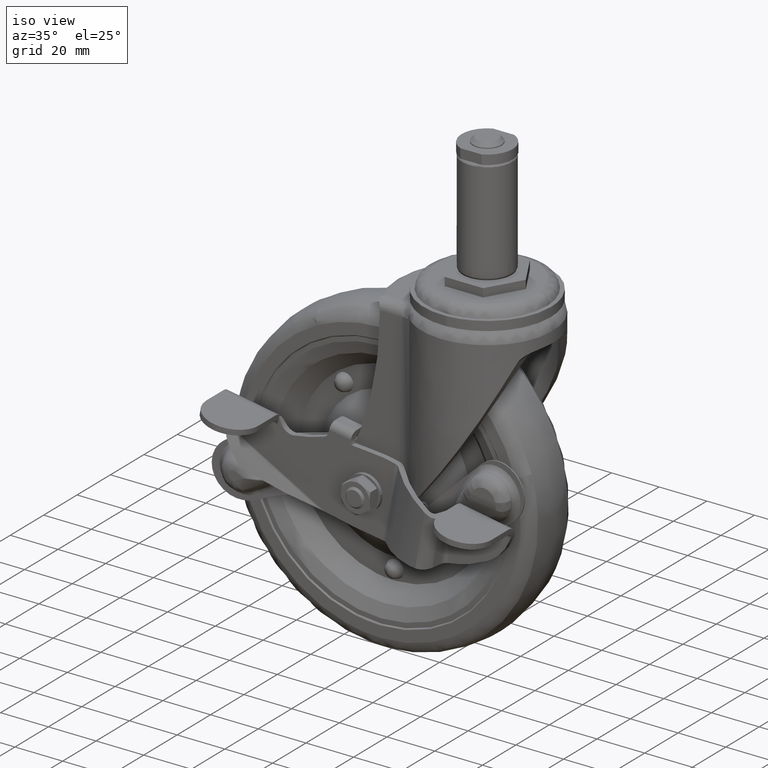
[diagram: clean part render]
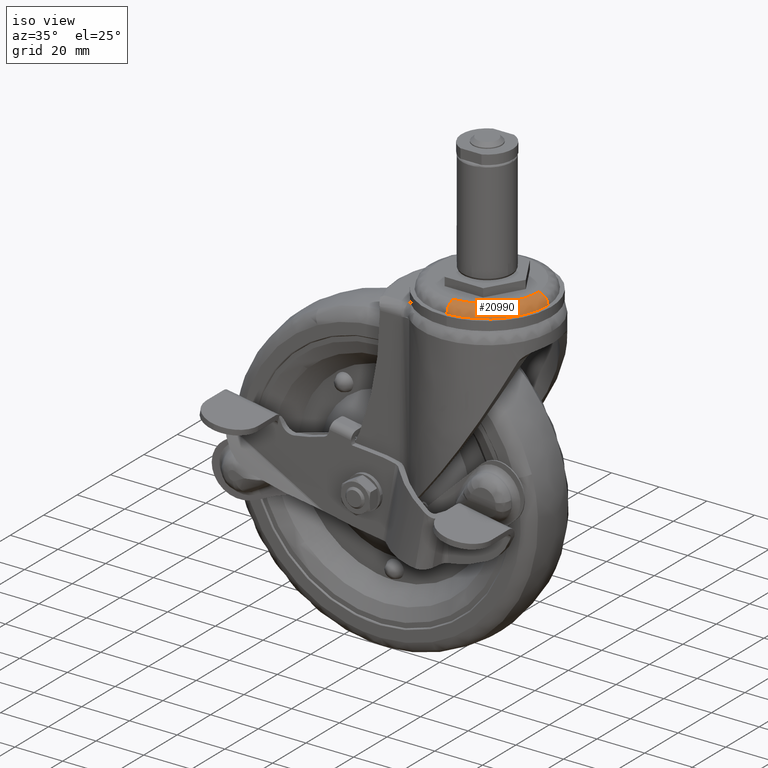
[diagram: same view with one face highlighted and labeled with its STEP entity id]
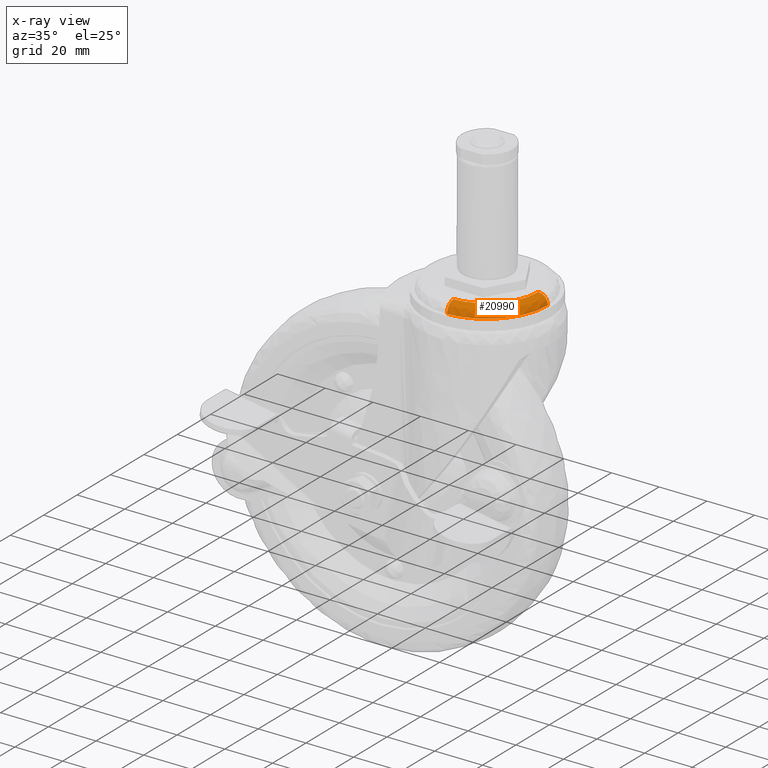
[diagram: x-ray of the same camera — body ghosted, the highlighted face saturated]
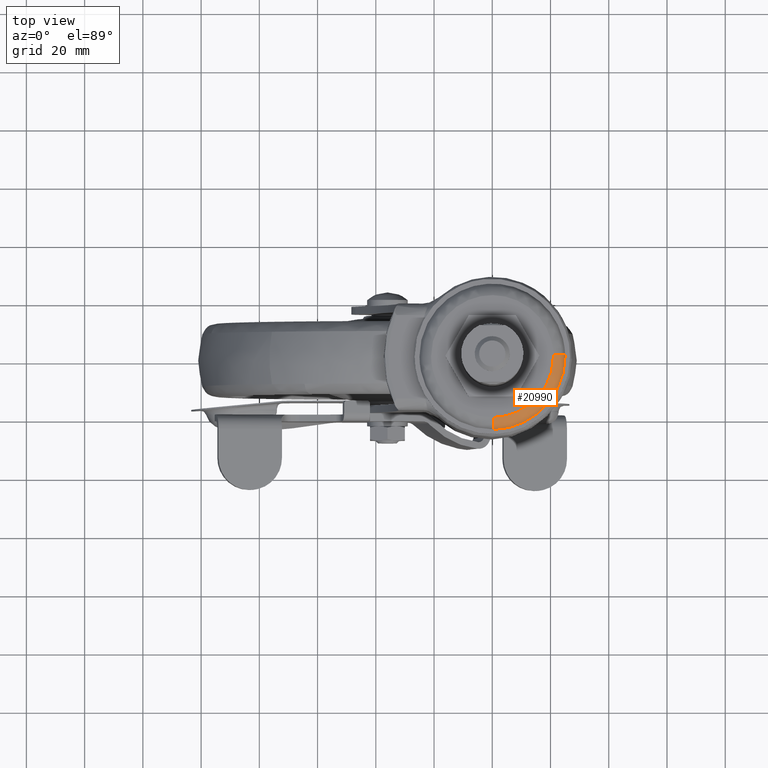
[diagram: same view with one face highlighted and labeled with its STEP entity id]
A machine part, iso view. The second image highlights one B-rep face of the part: STEP entity #20990.
The next image is the same camera in x-ray: the body ghosted, the highlighted face saturated — about 0% of this face is hidden behind the body in this view.
A second angle (top view) of the same face is appended — the face is thin or edge-on in the first view.
In plain terms, the highlighted face is a freeform B-spline surface patch.
Its self-contained STEP definition (entity closure, byte-faithful):
#20812=CARTESIAN_POINT('',(0.527732005274940,-20.993367982204379,-2.499783000000094));
#20813=VERTEX_POINT('',#20812);
#20831=CARTESIAN_POINT('',(20.993367982619450,0.527732005338805,-2.499783000000094));
#20832=VERTEX_POINT('',#20831);
#20848=CARTESIAN_POINT('',(24.992104732076921,0.628252386300305,-6.499782302629562));
#20849=VERTEX_POINT('',#20848);
#20850=CARTESIAN_POINT('',(20.993367982619457,0.527732005338805,-2.499783000000095));
#20851=CARTESIAN_POINT('',(24.992103337782151,0.628252351033474,-2.499783015387259));
#20852=CARTESIAN_POINT('',(24.992104732076918,0.628252386300305,-6.499782302629562));
#20860=(BOUNDED_CURVE()B_SPLINE_CURVE(2,(#20850,#20851,#20852),.UNSPECIFIED.,.F.,.U.)B_SPLINE_CURVE_WITH_KNOTS((3,3),(-1.723441278024150,-0.263587239804163),.UNSPECIFIED.)CURVE()GEOMETRIC_REPRESENTATION_ITEM()RATIONAL_B_SPLINE_CURVE((0.883897565742766,0.626638791542446,0.888510279593106))REPRESENTATION_ITEM(''));
#20861=EDGE_CURVE('',#20832,#20849,#20860,.T.);
#20880=CARTESIAN_POINT('',(0.628252386297336,-24.992104732076999,-6.499782302629559));
#20881=VERTEX_POINT('',#20880);
#20897=CARTESIAN_POINT('',(0.527732005274940,-20.993367982204379,-2.499783000000095));
#20898=CARTESIAN_POINT('',(0.628252351033476,-24.992103337782151,-2.499783014554168));
#20899=CARTESIAN_POINT('',(0.628252386297336,-24.992104732076992,-6.499782302629559));
#20907=(BOUNDED_CURVE()B_SPLINE_CURVE(2,(#20897,#20898,#20899),.UNSPECIFIED.,.F.,.U.)B_SPLINE_CURVE_WITH_KNOTS((3,3),(-1.723441278238585,-0.263587239804163),.UNSPECIFIED.)CURVE()GEOMETRIC_REPRESENTATION_ITEM()RATIONAL_B_SPLINE_CURVE((0.883897565818343,0.626638791503980,0.888510279593106))REPRESENTATION_ITEM(''));
#20908=EDGE_CURVE('',#20813,#20881,#20907,.T.);
#20913=CARTESIAN_POINT('',(20.714558374233214,0.520723279003016,-2.509517835337709));
#20914=CARTESIAN_POINT('',(21.235281653236225,-20.193835095230192,-2.509517835337709));
#20915=CARTESIAN_POINT('',(0.520723279003018,-20.714558374233214,-2.509517835337709));
#20916=CARTESIAN_POINT('',(25.301349891967678,0.636026201520973,-2.188824952701496));
#20917=CARTESIAN_POINT('',(25.937376093488652,-24.665323690446677,-2.188824952701495));
#20918=CARTESIAN_POINT('',(0.636026201520975,-25.301349891967678,-2.188824952701496));
#20919=CARTESIAN_POINT('',(24.982477172632954,0.628010368163738,-6.777185340830907));
#20920=CARTESIAN_POINT('',(25.610487540796694,-24.354466804469212,-6.777185340830905));
#20921=CARTESIAN_POINT('',(0.628010368163739,-24.982477172632954,-6.777185340830907));
#20929=(BOUNDED_SURFACE()B_SPLINE_SURFACE(2,2,((#20913,#20916,#20919),(#20914,#20917,#20920),(#20915,#20918,#20921)),.UNSPECIFIED.,.F.,.F.,.U.)B_SPLINE_SURFACE_WITH_KNOTS((3,3),(3,3),(0.0,41.405399735288952),(0.0,7.289482494895393),.UNSPECIFIED.)GEOMETRIC_REPRESENTATION_ITEM()RATIONAL_B_SPLINE_SURFACE(((0.910893038506256,0.599412882444686,0.915966626020206),(0.644098644463392,0.423848913907212,0.647686212599450),(0.910893038506256,0.599412882444686,0.915966626020206)))REPRESENTATION_ITEM('')SURFACE());
#20930=CARTESIAN_POINT('',(21.0,0.0,-2.499783000000095));
#20931=VERTEX_POINT('',#20930);
#20932=CARTESIAN_POINT('',(21.0,0.0,-2.499783000000095));
#20933=CARTESIAN_POINT('',(21.000000000000004,-20.478735398267641,-2.499783000000095));
#20934=CARTESIAN_POINT('',(0.527732005274940,-20.993367982204376,-2.499783000000095));
#20942=(BOUNDED_CURVE()B_SPLINE_CURVE(2,(#20932,#20933,#20934),.UNSPECIFIED.,.F.,.U.)B_SPLINE_CURVE_WITH_KNOTS((3,3),(0.500000000000000,0.745579891756773),.UNSPECIFIED.)CURVE()GEOMETRIC_REPRESENTATION_ITEM()RATIONAL_B_SPLINE_CURVE((1.0,0.712285260109998,0.989826157652114))REPRESENTATION_ITEM(''));
#20943=EDGE_CURVE('',#20931,#20813,#20942,.T.);
#20944=ORIENTED_EDGE('',*,*,#20943,.T.);
#20945=ORIENTED_EDGE('',*,*,#20908,.T.);
#20946=CARTESIAN_POINT('',(25.0,0.0,-6.499783000000091));
#20947=VERTEX_POINT('',#20946);
#20948=CARTESIAN_POINT('',(25.0,0.0,-6.499783000000091));
#20949=CARTESIAN_POINT('',(24.999999999999996,-24.379446904098685,-6.499783000000091));
#20950=CARTESIAN_POINT('',(0.628252386297336,-24.992104732076999,-6.499782302629559));
#20958=(BOUNDED_CURVE()B_SPLINE_CURVE(2,(#20948,#20949,#20950),.UNSPECIFIED.,.F.,.U.)B_SPLINE_CURVE_WITH_KNOTS((3,3),(0.500000000000000,0.745579891766812),.UNSPECIFIED.)CURVE()GEOMETRIC_REPRESENTATION_ITEM()RATIONAL_B_SPLINE_CURVE((1.0,0.712285260098237,0.989826157674805))REPRESENTATION_ITEM(''));
#20959=EDGE_CURVE('',#20947,#20881,#20958,.T.);
#20960=ORIENTED_EDGE('',*,*,#20959,.F.);
#20961=CARTESIAN_POINT('',(24.992104732076921,0.628252386300305,-6.499782302629563));
#20962=CARTESIAN_POINT('',(24.999999999999996,0.314175803301460,-6.499783000000091));
#20963=CARTESIAN_POINT('',(25.0,0.0,-6.499783000000091));
#20971=(BOUNDED_CURVE()B_SPLINE_CURVE(2,(#20961,#20962,#20963),.UNSPECIFIED.,.F.,.U.)B_SPLINE_CURVE_WITH_KNOTS((3,3),(0.495579891766771,0.500000000000000),.UNSPECIFIED.)CURVE()GEOMETRIC_REPRESENTATION_ITEM()RATIONAL_B_SPLINE_CURVE((0.989826157674712,0.994821521088263,1.0))REPRESENTATION_ITEM(''));
#20972=EDGE_CURVE('',#20849,#20947,#20971,.T.);
#20973=ORIENTED_EDGE('',*,*,#20972,.F.);
#20974=ORIENTED_EDGE('',*,*,#20861,.F.);
#20975=CARTESIAN_POINT('',(20.993367982619450,0.527732005338805,-2.499783000000094));
#20976=CARTESIAN_POINT('',(21.0,0.263907675426742,-2.499783000000095));
#20977=CARTESIAN_POINT('',(21.0,0.0,-2.499783000000095));
#20985=(BOUNDED_CURVE()B_SPLINE_CURVE(2,(#20975,#20976,#20977),.UNSPECIFIED.,.F.,.U.)B_SPLINE_CURVE_WITH_KNOTS((3,3),(0.495579891755882,0.500000000000000),.UNSPECIFIED.)CURVE()GEOMETRIC_REPRESENTATION_ITEM()RATIONAL_B_SPLINE_CURVE((0.989826157650100,0.994821521075506,1.0))REPRESENTATION_ITEM(''));
#20986=EDGE_CURVE('',#20832,#20931,#20985,.T.);
#20987=ORIENTED_EDGE('',*,*,#20986,.T.);
#20988=EDGE_LOOP('',(#20944,#20945,#20960,#20973,#20974,#20987));
#20989=FACE_OUTER_BOUND('',#20988,.T.);
#20990=ADVANCED_FACE('',(#20989),#20929,.T.);